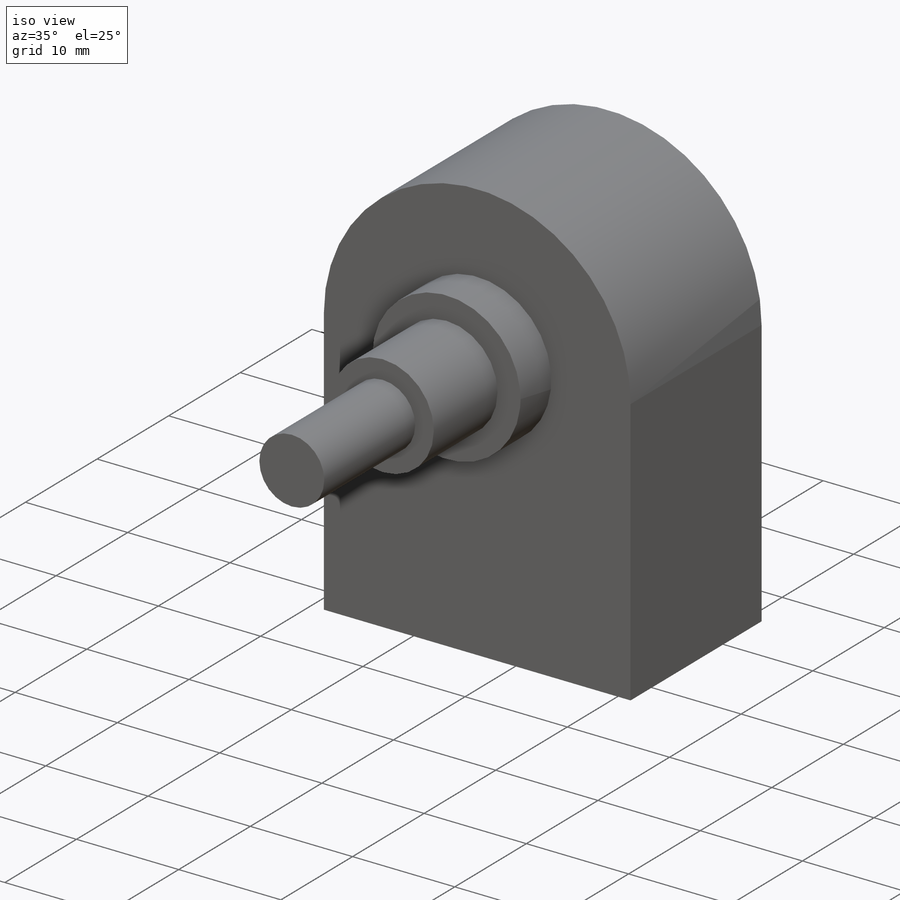
[diagram: iso view]
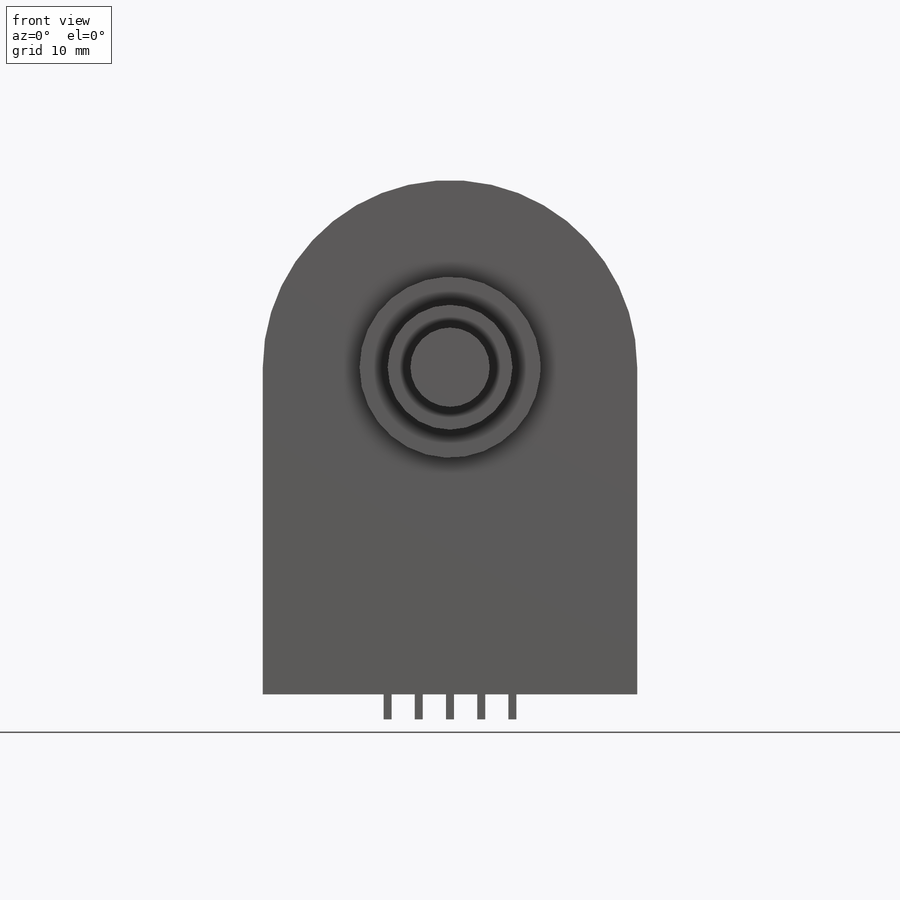
[diagram: front view]
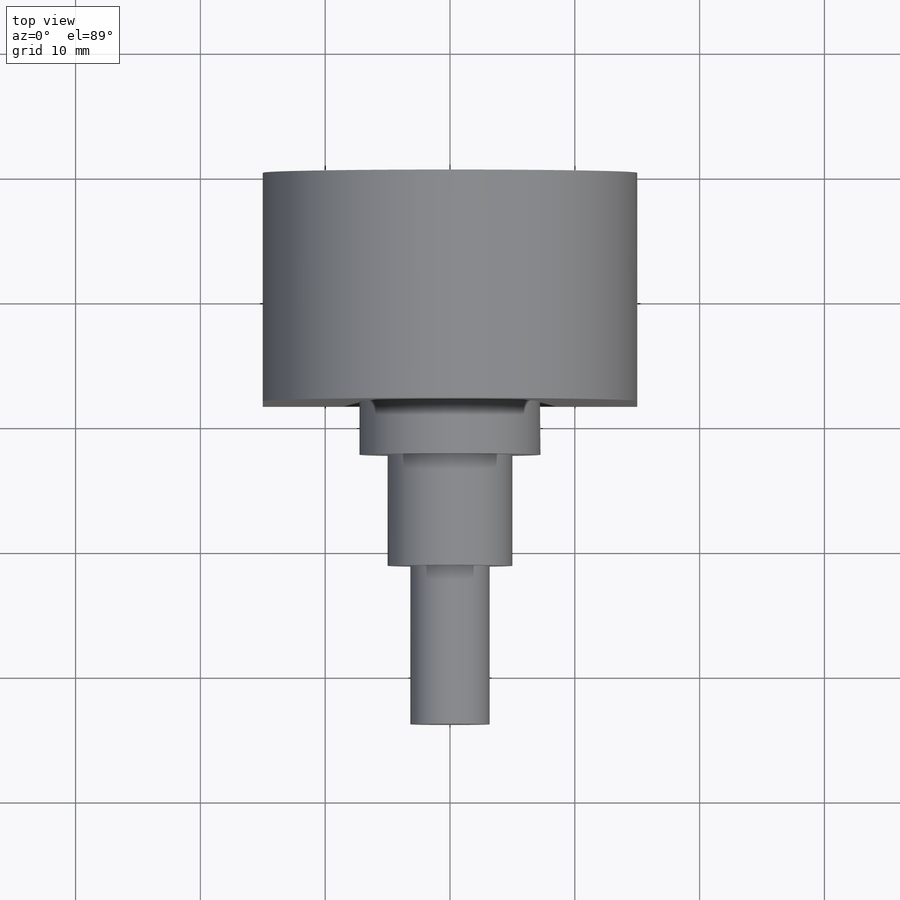
[diagram: top view]
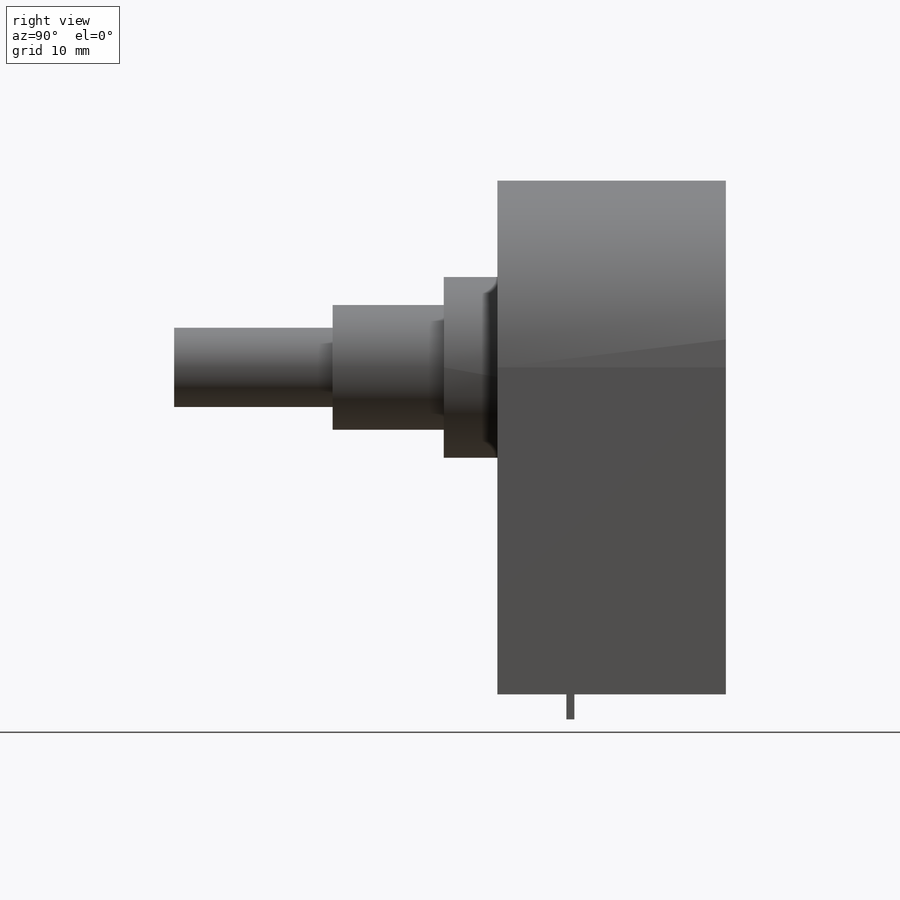
[diagram: right view]
SOLIDWORKS PART (.sldprt)
format: sldprt  version: not decoded by parser v0  size: 256,512 bytes
history: native  units: mm
features: sketch x6, extrude x5, plane x3, material x1, cut_extrude x1 (+13 scaffold rows collapsed)
feature tree (29):
  scaffold x13  (default folders/planes/origin — collapsed)
  material  "Matériau <non spécifié>"
  plane  "Plan de face"
  plane  "Plan de dessus"
  plane  "Plan de droite"
  sketch  "Esquisse1"  dims[D4=15.0mm D1=30.0mm D2=26.2mm D3=41.1mm]
  extrude  "Boss.-Extru.1"  Depth=18.3mm
  sketch  "Esquisse2"  dims[D1=~6.926551mm]
  extrude  "Boss.-Extru.2"  Depth=4.3mm
  sketch  "Esquisse3"  dims[D1=5.0mm]
  extrude  "Boss.-Extru.3"  Depth=8.9mm
  sketch  "Esquisse4"  dims[D1=~3.455883mm]
  extrude  "Boss.-Extru.4"  Depth=12.7mm
  sketch  "Esquisse5"  dims[D1=3.0mm D2=7.1mm D3=14.36mm D4=0.0mm]
  cut_extrude  "Enlèv. mat.-Extru.2"  Depth=6mm
  sketch  "Esquisse6"  dims[D1=0.64mm D2=0.64mm D3=1.86mm D5=1.86mm D4=5.0]
  extrude  "Boss.-Extru.5"  Depth=8mm
decode coverage: 12 of 12 modeling features carry decoded parameters
note: ~ marks probable driven/reference dimensions
note: suppression state not decoded; provenance and decode notes live in map.json
